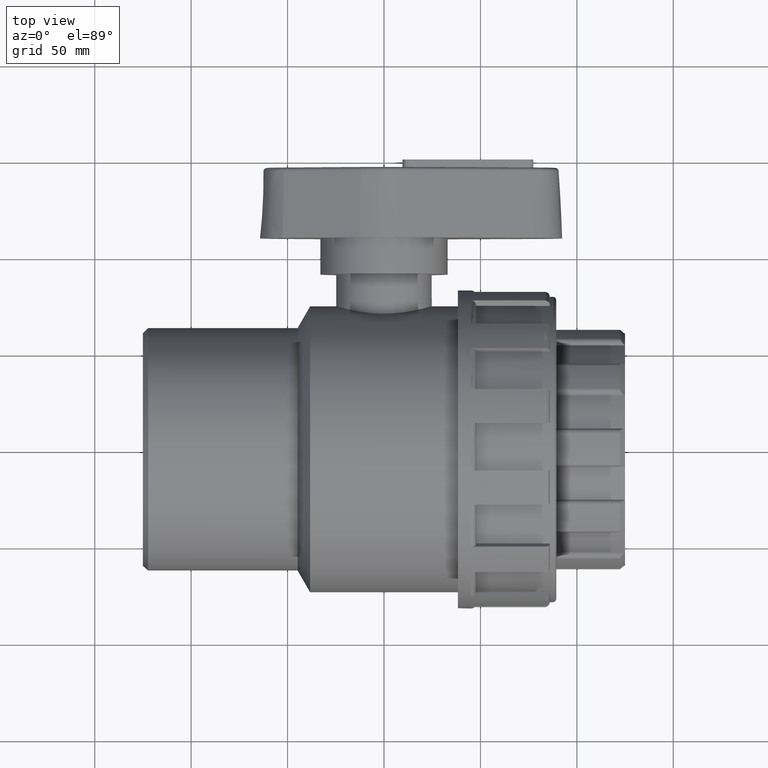
[diagram: clean part render]
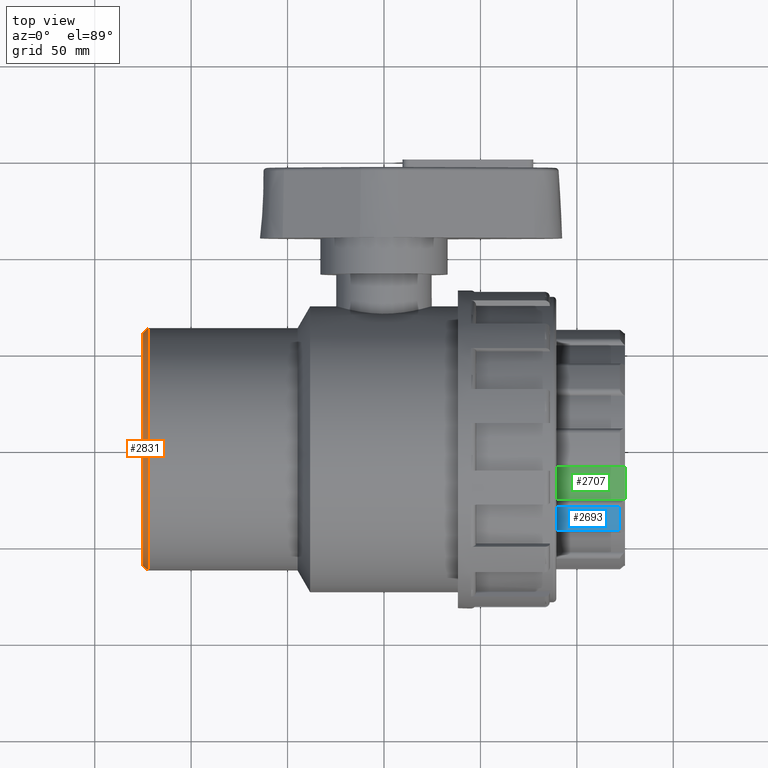
[diagram: same view with three faces highlighted in distinct colors, each labeled with its STEP entity id]
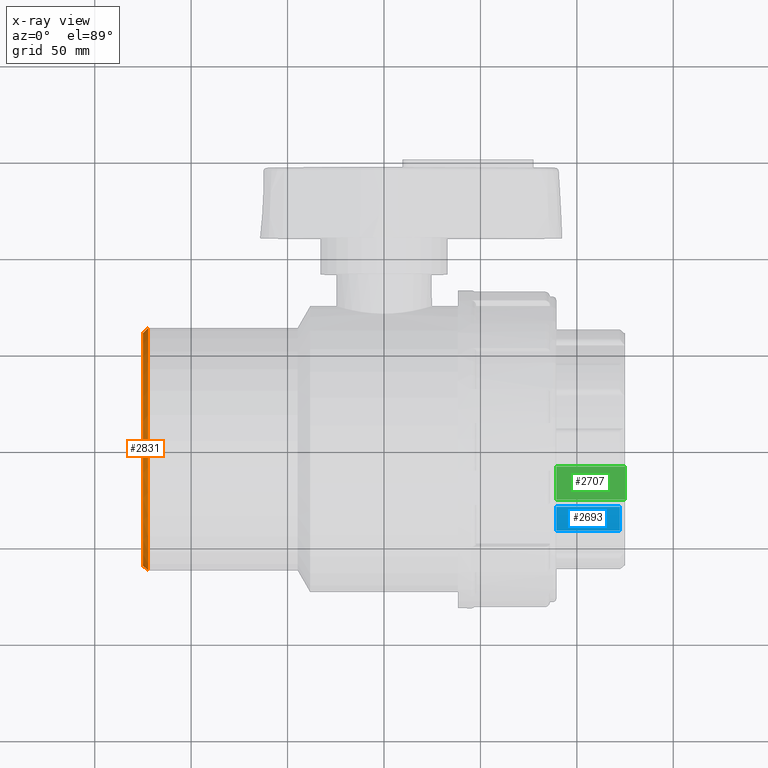
[diagram: x-ray of the same camera — body ghosted, the three highlighted faces saturated]
A machine part, top view with three faces highlighted in distinct colors.
The next image is the same camera in x-ray (body ghosted, the three faces saturated) — at least one of them is partly hidden behind the body in this view.
Their STEP definitions:

[orange] entity #2831 — the highlighted conical surface has half-angle 45 deg.
#30=FACE_BOUND('',#490,.T.);
#148=CONICAL_SURFACE('',#3178,61.65,45.0000000000001);
#308=FACE_OUTER_BOUND('',#489,.T.);
#489=EDGE_LOOP('',(#2601));
#490=EDGE_LOOP('',(#2602));
#605=CIRCLE('',#3018,60.3);
#685=CIRCLE('',#3179,63.);
#1206=VERTEX_POINT('',#4730);
#1358=VERTEX_POINT('',#5619);
#1552=EDGE_CURVE('',#1206,#1206,#605,.T.);
#1776=EDGE_CURVE('',#1358,#1358,#685,.T.);
#2601=ORIENTED_EDGE('',*,*,#1552,.T.);
#2602=ORIENTED_EDGE('',*,*,#1776,.T.);
#2831=ADVANCED_FACE('',(#308,#30),#148,.T.);
#3018=AXIS2_PLACEMENT_3D('',#4731,#3616,#3617);
#3178=AXIS2_PLACEMENT_3D('',#5618,#4032,#4033);
#3179=AXIS2_PLACEMENT_3D('',#5620,#4034,#4035);
#3616=DIRECTION('center_axis',(1.,0.,0.));
#3617=DIRECTION('ref_axis',(0.,-1.,0.));
#4032=DIRECTION('center_axis',(1.,0.,0.));
#4033=DIRECTION('ref_axis',(0.,-1.,0.));
#4034=DIRECTION('center_axis',(-1.,0.,0.));
#4035=DIRECTION('ref_axis',(0.,-1.,0.));
#4730=CARTESIAN_POINT('',(-125.,60.3,7.38462019885854E-15));
#4731=CARTESIAN_POINT('Origin',(-125.,0.,0.));
#5618=CARTESIAN_POINT('Origin',(-123.65,0.,0.));
#5619=CARTESIAN_POINT('',(-122.3,63.,-7.71527483462833E-15));
#5620=CARTESIAN_POINT('Origin',(-122.3,0.,0.));

[blue] entity #2693 — the highlighted cylindrical surface (partial cylindrical patch) has radius 63 mm, axis along (1, 0, 0).
#170=FACE_OUTER_BOUND('',#336,.T.);
#336=EDGE_LOOP('',(#1862,#1863,#1864,#1865));
#532=CIRCLE('',#2888,63.);
#533=CIRCLE('',#2889,63.);
#712=LINE('',#4295,#876);
#718=LINE('',#4347,#882);
#876=VECTOR('',#3287,33.);
#882=VECTOR('',#3313,33.);
#1131=VERTEX_POINT('',#4281);
#1132=VERTEX_POINT('',#4294);
#1143=VERTEX_POINT('',#4344);
#1144=VERTEX_POINT('',#4346);
#1416=EDGE_CURVE('',#1131,#1132,#712,.T.);
#1430=EDGE_CURVE('',#1143,#1144,#718,.T.);
#1433=EDGE_CURVE('',#1144,#1131,#532,.T.);
#1434=EDGE_CURVE('',#1143,#1132,#533,.T.);
#1862=ORIENTED_EDGE('',*,*,#1416,.F.);
#1863=ORIENTED_EDGE('',*,*,#1433,.F.);
#1864=ORIENTED_EDGE('',*,*,#1430,.F.);
#1865=ORIENTED_EDGE('',*,*,#1434,.T.);
#2638=CYLINDRICAL_SURFACE('',#2887,63.);
#2693=ADVANCED_FACE('',(#170),#2638,.T.);
#2887=AXIS2_PLACEMENT_3D('',#4362,#3315,#3316);
#2888=AXIS2_PLACEMENT_3D('',#4363,#3317,#3318);
#2889=AXIS2_PLACEMENT_3D('',#4364,#3319,#3320);
#3287=DIRECTION('',(-1.,0.,0.));
#3313=DIRECTION('',(1.,0.,0.));
#3315=DIRECTION('center_axis',(1.,0.,0.));
#3316=DIRECTION('ref_axis',(0.,1.,0.));
#3317=DIRECTION('center_axis',(1.,0.,0.));
#3318=DIRECTION('ref_axis',(0.,-1.,0.));
#3319=DIRECTION('center_axis',(1.,0.,0.));
#3320=DIRECTION('ref_axis',(0.,0.,-1.));
#4281=CARTESIAN_POINT('',(122.3,-42.8456256050642,46.1871450352873));
#4294=CARTESIAN_POINT('',(89.3,-42.8456256050642,46.1871450352873));
#4295=CARTESIAN_POINT('',(125.,-42.8456256050642,46.1871450352873));
#4344=CARTESIAN_POINT('',(89.3,-30.6865588082881,55.0212241640031));
#4346=CARTESIAN_POINT('',(122.3,-30.6865588082881,55.0212241640031));
#4347=CARTESIAN_POINT('',(125.,-30.6865588082881,55.0212241640031));
#4362=CARTESIAN_POINT('Origin',(107.15,0.,0.));
#4363=CARTESIAN_POINT('Origin',(122.3,0.,0.));
#4364=CARTESIAN_POINT('Origin',(89.3,0.,0.));

[green] entity #2707 — the highlighted cylindrical surface (partial cylindrical patch) has radius 60.3 mm, axis along (-1, 0, 0).
#184=FACE_OUTER_BOUND('',#350,.T.);
#350=EDGE_LOOP('',(#1918,#1919,#1920,#1921));
#556=CIRCLE('',#2926,60.3);
#557=CIRCLE('',#2927,60.3);
#717=LINE('',#4341,#881);
#719=LINE('',#4361,#883);
#881=VECTOR('',#3308,35.7);
#883=VECTOR('',#3314,35.7);
#1138=VERTEX_POINT('',#4323);
#1141=VERTEX_POINT('',#4339);
#1142=VERTEX_POINT('',#4343);
#1145=VERTEX_POINT('',#4348);
#1428=EDGE_CURVE('',#1138,#1141,#717,.T.);
#1432=EDGE_CURVE('',#1145,#1142,#719,.T.);
#1470=EDGE_CURVE('',#1145,#1138,#556,.T.);
#1471=EDGE_CURVE('',#1141,#1142,#557,.T.);
#1918=ORIENTED_EDGE('',*,*,#1470,.T.);
#1919=ORIENTED_EDGE('',*,*,#1428,.T.);
#1920=ORIENTED_EDGE('',*,*,#1471,.T.);
#1921=ORIENTED_EDGE('',*,*,#1432,.F.);
#2651=CYLINDRICAL_SURFACE('',#2925,60.3);
#2707=ADVANCED_FACE('',(#184),#2651,.T.);
#2925=AXIS2_PLACEMENT_3D('',#4486,#3399,#3400);
#2926=AXIS2_PLACEMENT_3D('',#4487,#3401,#3402);
#2927=AXIS2_PLACEMENT_3D('',#4488,#3403,#3404);
#3308=DIRECTION('',(-1.,0.,0.));
#3314=DIRECTION('',(-1.,0.,0.));
#3399=DIRECTION('center_axis',(-1.,0.,0.));
#3400=DIRECTION('ref_axis',(0.,-0.951056516295154,-0.309016994374947));
#3401=DIRECTION('center_axis',(-1.,0.,0.));
#3402=DIRECTION('ref_axis',(0.,-1.,0.));
#3403=DIRECTION('center_axis',(1.,0.,0.));
#3404=DIRECTION('ref_axis',(0.,-0.951056516295154,-0.309016994374947));
#4323=CARTESIAN_POINT('',(125.,-9.86549845602296,59.4874939816278));
#4339=CARTESIAN_POINT('',(89.3,-9.86549845602296,59.4874939816278));
#4341=CARTESIAN_POINT('',(125.,-9.86549845602296,59.4874939816278));
#4343=CARTESIAN_POINT('',(89.3,-26.9845157493357,53.9251880828788));
#4348=CARTESIAN_POINT('',(125.,-26.9845157493357,53.9251880828788));
#4361=CARTESIAN_POINT('',(125.,-26.9845157493357,53.9251880828788));
#4486=CARTESIAN_POINT('Origin',(125.,0.,0.));
#4487=CARTESIAN_POINT('Origin',(125.,0.,0.));
#4488=CARTESIAN_POINT('Origin',(89.3,0.,0.));